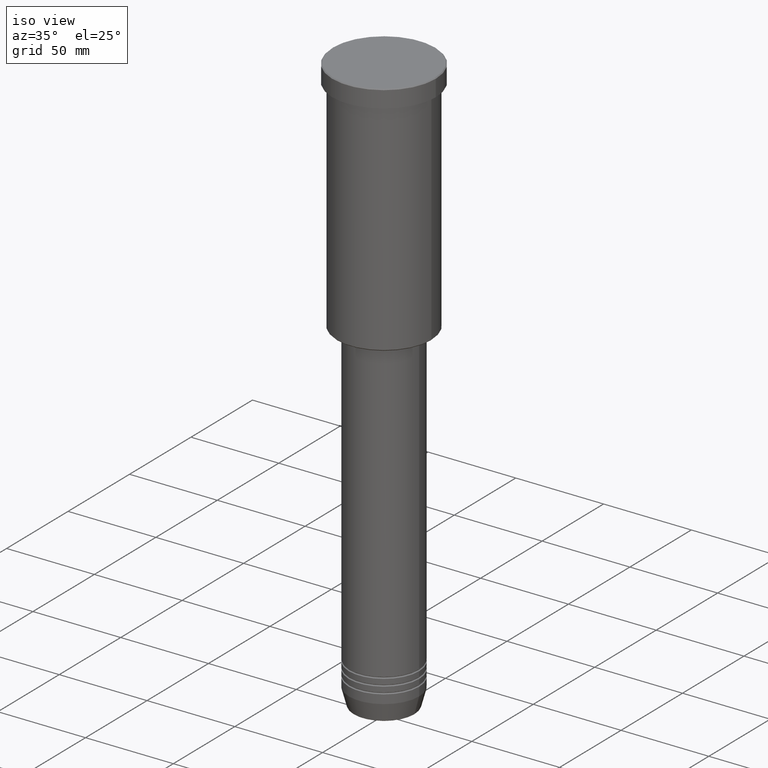
[diagram: clean part render]
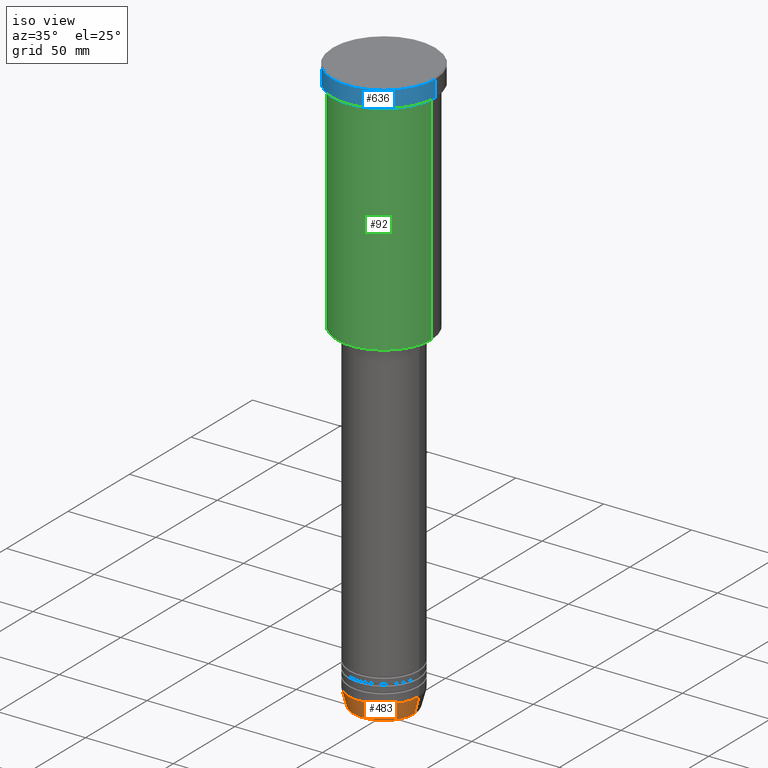
[diagram: same view with three faces highlighted in distinct colors, each labeled with its STEP entity id]
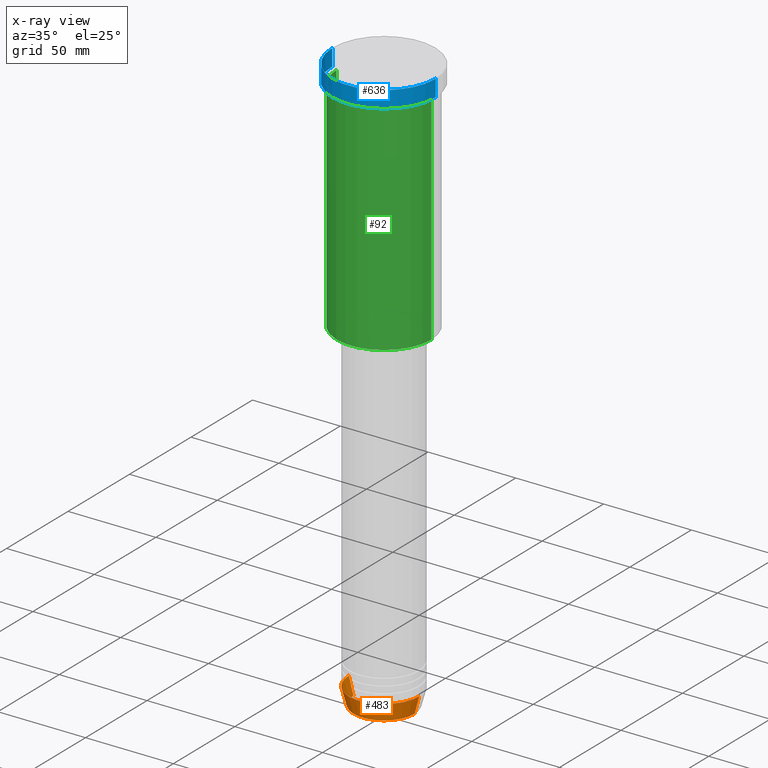
[diagram: x-ray of the same camera — body ghosted, the three highlighted faces saturated]
A machine part, iso view with three faces highlighted in distinct colors.
The next image is the same camera in x-ray (body ghosted, the three faces saturated) — at least one of them is partly hidden behind the body in this view.
Their STEP definitions:

[orange] entity #483 — the highlighted conical surface has half-angle 15 deg.
#11 = CARTESIAN_POINT ( 'NONE',  ( 0.000000000000000000, 0.000000000000000000, -321.0000000000000000 ) ) ;
#43 = EDGE_CURVE ( 'NONE', #259, #735, #1137, .T. ) ;
#100 = EDGE_LOOP ( 'NONE', ( #647, #795, #316, #633 ) ) ;
#124 = CARTESIAN_POINT ( 'NONE',  ( -17.41980749484382684, 2.291302373663531915E-15, -330.6294095225512706 ) ) ;
#188 = CARTESIAN_POINT ( 'NONE',  ( 0.000000000000000000, 0.000000000000000000, -330.6294095225512706 ) ) ;
#194 = CARTESIAN_POINT ( 'NONE',  ( -20.00000000000000000, 2.449293598294706513E-15, -321.0000000000000000 ) ) ;
#259 = VERTEX_POINT ( 'NONE', #124 ) ;
#310 = FACE_OUTER_BOUND ( 'NONE', #100, .T. ) ;
#316 = ORIENTED_EDGE ( 'NONE', *, *, #454, .T. ) ;
#335 = CARTESIAN_POINT ( 'NONE',  ( 0.000000000000000000, 0.000000000000000000, -321.0000000000000000 ) ) ;
#358 = DIRECTION ( 'NONE',  ( -0.000000000000000000, -0.000000000000000000, 1.000000000000000000 ) ) ;
#391 = DIRECTION ( 'NONE',  ( 1.000000000000000000, 0.000000000000000000, 0.000000000000000000 ) ) ;
#421 = EDGE_CURVE ( 'NONE', #760, #689, #1079, .T. ) ;
#454 = EDGE_CURVE ( 'NONE', #735, #689, #1117, .T. ) ;
#456 = CARTESIAN_POINT ( 'NONE',  ( 17.41980749484382684, 0.000000000000000000, -330.6294095225512706 ) ) ;
#460 = VECTOR ( 'NONE', #715, 1000.000000000000114 ) ;
#483 = ADVANCED_FACE ( 'NONE', ( #310 ), #817, .T. ) ;
#501 = AXIS2_PLACEMENT_3D ( 'NONE', #335, #1129, #950 ) ;
#564 = EDGE_CURVE ( 'NONE', #259, #760, #1077, .T. ) ;
#592 = DIRECTION ( 'NONE',  ( 0.2588190451025211836, 0.000000000000000000, 0.9659258262890680902 ) ) ;
#625 = CARTESIAN_POINT ( 'NONE',  ( -20.00000000000000000, 2.449293598294706513E-15, -321.0000000000000000 ) ) ;
#633 = ORIENTED_EDGE ( 'NONE', *, *, #421, .F. ) ;
#634 = DIRECTION ( 'NONE',  ( 1.000000000000000000, 0.000000000000000000, 0.000000000000000000 ) ) ;
#640 = AXIS2_PLACEMENT_3D ( 'NONE', #188, #358, #634 ) ;
#647 = ORIENTED_EDGE ( 'NONE', *, *, #564, .F. ) ;
#689 = VERTEX_POINT ( 'NONE', #1094 ) ;
#715 = DIRECTION ( 'NONE',  ( -0.2588190451025211836, 3.169619151431770488E-17, 0.9659258262890680902 ) ) ;
#735 = VERTEX_POINT ( 'NONE', #456 ) ;
#760 = VERTEX_POINT ( 'NONE', #194 ) ;
#795 = ORIENTED_EDGE ( 'NONE', *, *, #43, .T. ) ;
#817 = CONICAL_SURFACE ( 'NONE', #501, 20.00000000000000000, 0.2617993877991499074 ) ;
#867 = CARTESIAN_POINT ( 'NONE',  ( 20.00000000000000000, 0.000000000000000000, -321.0000000000000000 ) ) ;
#950 = DIRECTION ( 'NONE',  ( 1.000000000000000000, 0.000000000000000000, 0.000000000000000000 ) ) ;
#965 = VECTOR ( 'NONE', #592, 1000.000000000000114 ) ;
#1015 = DIRECTION ( 'NONE',  ( -0.000000000000000000, -0.000000000000000000, 1.000000000000000000 ) ) ;
#1064 = AXIS2_PLACEMENT_3D ( 'NONE', #11, #1015, #391 ) ;
#1077 = LINE ( 'NONE', #625, #460 ) ;
#1079 = CIRCLE ( 'NONE', #1064, 20.00000000000000000 ) ;
#1094 = CARTESIAN_POINT ( 'NONE',  ( 20.00000000000000000, 0.000000000000000000, -321.0000000000000000 ) ) ;
#1117 = LINE ( 'NONE', #867, #965 ) ;
#1129 = DIRECTION ( 'NONE',  ( -0.000000000000000000, -0.000000000000000000, 1.000000000000000000 ) ) ;
#1137 = CIRCLE ( 'NONE', #640, 17.41980749484382684 ) ;

[blue] entity #636 — the highlighted cylindrical surface (partial cylindrical patch) has radius 29.5 mm, axis along (-0, -0, 1).
#67 = VERTEX_POINT ( 'NONE', #900 ) ;
#97 = CARTESIAN_POINT ( 'NONE',  ( 0.000000000000000000, 0.000000000000000000, -9.999999999999992895 ) ) ;
#149 = ORIENTED_EDGE ( 'NONE', *, *, #1175, .T. ) ;
#150 = CARTESIAN_POINT ( 'NONE',  ( 29.50000000000000000, 0.000000000000000000, -0.5000000000001392220 ) ) ;
#242 = DIRECTION ( 'NONE',  ( -0.000000000000000000, -0.000000000000000000, 1.000000000000000000 ) ) ;
#297 = DIRECTION ( 'NONE',  ( 1.000000000000000000, 0.000000000000000000, 0.000000000000000000 ) ) ;
#345 = CARTESIAN_POINT ( 'NONE',  ( 0.000000000000000000, 0.000000000000000000, -0.5000000000001392220 ) ) ;
#349 = VERTEX_POINT ( 'NONE', #470 ) ;
#392 = VECTOR ( 'NONE', #772, 1000.000000000000000 ) ;
#453 = CYLINDRICAL_SURFACE ( 'NONE', #1122, 29.50000000000000000 ) ;
#470 = CARTESIAN_POINT ( 'NONE',  ( -29.50000000000000000, 3.612708057484691604E-15, -9.999999999999992895 ) ) ;
#476 = DIRECTION ( 'NONE',  ( -0.000000000000000000, -0.000000000000000000, 1.000000000000000000 ) ) ;
#526 = DIRECTION ( 'NONE',  ( 1.000000000000000000, 0.000000000000000000, 0.000000000000000000 ) ) ;
#534 = DIRECTION ( 'NONE',  ( -0.000000000000000000, -0.000000000000000000, 1.000000000000000000 ) ) ;
#543 = AXIS2_PLACEMENT_3D ( 'NONE', #345, #695, #526 ) ;
#605 = CARTESIAN_POINT ( 'NONE',  ( 29.50000000000000000, 0.000000000000000000, 0.000000000000000000 ) ) ;
#609 = CARTESIAN_POINT ( 'NONE',  ( 0.000000000000000000, 0.000000000000000000, 0.000000000000000000 ) ) ;
#614 = FACE_OUTER_BOUND ( 'NONE', #1086, .T. ) ;
#636 = ADVANCED_FACE ( 'NONE', ( #614 ), #453, .T. ) ;
#684 = AXIS2_PLACEMENT_3D ( 'NONE', #97, #476, #297 ) ;
#685 = LINE ( 'NONE', #1049, #818 ) ;
#695 = DIRECTION ( 'NONE',  ( 0.000000000000000000, 0.000000000000000000, -1.000000000000000000 ) ) ;
#772 = DIRECTION ( 'NONE',  ( -0.000000000000000000, -0.000000000000000000, 1.000000000000000000 ) ) ;
#791 = CARTESIAN_POINT ( 'NONE',  ( 29.50000000000000000, 0.000000000000000000, -9.999999999999992895 ) ) ;
#812 = EDGE_CURVE ( 'NONE', #1056, #1024, #859, .T. ) ;
#818 = VECTOR ( 'NONE', #242, 1000.000000000000000 ) ;
#837 = EDGE_CURVE ( 'NONE', #349, #67, #685, .T. ) ;
#859 = LINE ( 'NONE', #605, #392 ) ;
#883 = DIRECTION ( 'NONE',  ( 1.000000000000000000, 0.000000000000000000, 0.000000000000000000 ) ) ;
#889 = ORIENTED_EDGE ( 'NONE', *, *, #812, .T. ) ;
#900 = CARTESIAN_POINT ( 'NONE',  ( -29.50000000000000000, 3.612708057484691604E-15, -0.5000000000001392220 ) ) ;
#951 = CIRCLE ( 'NONE', #543, 29.50000000000000000 ) ;
#957 = ORIENTED_EDGE ( 'NONE', *, *, #837, .F. ) ;
#1024 = VERTEX_POINT ( 'NONE', #150 ) ;
#1047 = CIRCLE ( 'NONE', #684, 29.50000000000000000 ) ;
#1048 = EDGE_CURVE ( 'NONE', #1024, #67, #951, .T. ) ;
#1049 = CARTESIAN_POINT ( 'NONE',  ( -29.50000000000000000, 3.612708057484691604E-15, 0.000000000000000000 ) ) ;
#1056 = VERTEX_POINT ( 'NONE', #791 ) ;
#1086 = EDGE_LOOP ( 'NONE', ( #957, #149, #889, #1162 ) ) ;
#1122 = AXIS2_PLACEMENT_3D ( 'NONE', #609, #534, #883 ) ;
#1162 = ORIENTED_EDGE ( 'NONE', *, *, #1048, .T. ) ;
#1175 = EDGE_CURVE ( 'NONE', #349, #1056, #1047, .T. ) ;

[green] entity #92 — the highlighted cylindrical surface (partial cylindrical patch) has radius 27 mm, axis along (-0, -0, 1).
#1 = ORIENTED_EDGE ( 'NONE', *, *, #21, .T. ) ;
#21 = EDGE_CURVE ( 'NONE', #63, #450, #426, .T. ) ;
#40 = DIRECTION ( 'NONE',  ( 1.000000000000000000, 0.000000000000000000, 0.000000000000000000 ) ) ;
#63 = VERTEX_POINT ( 'NONE', #1073 ) ;
#69 = FACE_OUTER_BOUND ( 'NONE', #616, .T. ) ;
#82 = DIRECTION ( 'NONE',  ( -0.000000000000000000, -0.000000000000000000, 1.000000000000000000 ) ) ;
#92 = ADVANCED_FACE ( 'NONE', ( #69 ), #446, .T. ) ;
#118 = VECTOR ( 'NONE', #959, 1000.000000000000000 ) ;
#153 = CARTESIAN_POINT ( 'NONE',  ( 0.000000000000000000, 0.000000000000000000, -10.99999999999999289 ) ) ;
#173 = DIRECTION ( 'NONE',  ( 1.000000000000000000, 0.000000000000000000, 0.000000000000000000 ) ) ;
#189 = CARTESIAN_POINT ( 'NONE',  ( 27.00000000000000355, 0.000000000000000000, 0.000000000000000000 ) ) ;
#312 = AXIS2_PLACEMENT_3D ( 'NONE', #153, #1030, #40 ) ;
#378 = VERTEX_POINT ( 'NONE', #739 ) ;
#389 = EDGE_CURVE ( 'NONE', #63, #407, #915, .T. ) ;
#407 = VERTEX_POINT ( 'NONE', #830 ) ;
#411 = CIRCLE ( 'NONE', #312, 27.00000000000000355 ) ;
#426 = CIRCLE ( 'NONE', #814, 27.00000000000000355 ) ;
#427 = VECTOR ( 'NONE', #638, 1000.000000000000000 ) ;
#446 = CYLINDRICAL_SURFACE ( 'NONE', #797, 27.00000000000000355 ) ;
#450 = VERTEX_POINT ( 'NONE', #848 ) ;
#539 = EDGE_CURVE ( 'NONE', #407, #378, #411, .T. ) ;
#606 = ORIENTED_EDGE ( 'NONE', *, *, #1017, .T. ) ;
#616 = EDGE_LOOP ( 'NONE', ( #718, #1, #606, #972 ) ) ;
#638 = DIRECTION ( 'NONE',  ( -0.000000000000000000, -0.000000000000000000, 1.000000000000000000 ) ) ;
#642 = DIRECTION ( 'NONE',  ( -0.000000000000000000, -0.000000000000000000, 1.000000000000000000 ) ) ;
#714 = CARTESIAN_POINT ( 'NONE',  ( 0.000000000000000000, 0.000000000000000000, -135.4999999999999716 ) ) ;
#718 = ORIENTED_EDGE ( 'NONE', *, *, #389, .F. ) ;
#725 = LINE ( 'NONE', #189, #118 ) ;
#739 = CARTESIAN_POINT ( 'NONE',  ( 27.00000000000000355, 0.000000000000000000, -10.99999999999999289 ) ) ;
#797 = AXIS2_PLACEMENT_3D ( 'NONE', #976, #82, #173 ) ;
#814 = AXIS2_PLACEMENT_3D ( 'NONE', #714, #642, #1163 ) ;
#830 = CARTESIAN_POINT ( 'NONE',  ( -27.00000000000000355, 3.306546357697854128E-15, -10.99999999999999289 ) ) ;
#848 = CARTESIAN_POINT ( 'NONE',  ( 27.00000000000000355, 0.000000000000000000, -135.4999999999999716 ) ) ;
#915 = LINE ( 'NONE', #1182, #427 ) ;
#959 = DIRECTION ( 'NONE',  ( -0.000000000000000000, -0.000000000000000000, 1.000000000000000000 ) ) ;
#972 = ORIENTED_EDGE ( 'NONE', *, *, #539, .F. ) ;
#976 = CARTESIAN_POINT ( 'NONE',  ( 0.000000000000000000, 0.000000000000000000, 0.000000000000000000 ) ) ;
#1017 = EDGE_CURVE ( 'NONE', #450, #378, #725, .T. ) ;
#1030 = DIRECTION ( 'NONE',  ( -0.000000000000000000, -0.000000000000000000, 1.000000000000000000 ) ) ;
#1073 = CARTESIAN_POINT ( 'NONE',  ( -27.00000000000000355, 3.306546357697854128E-15, -135.4999999999999716 ) ) ;
#1163 = DIRECTION ( 'NONE',  ( -1.000000000000000000, 0.000000000000000000, 0.000000000000000000 ) ) ;
#1182 = CARTESIAN_POINT ( 'NONE',  ( -27.00000000000000355, 3.306546357697854128E-15, 0.000000000000000000 ) ) ;